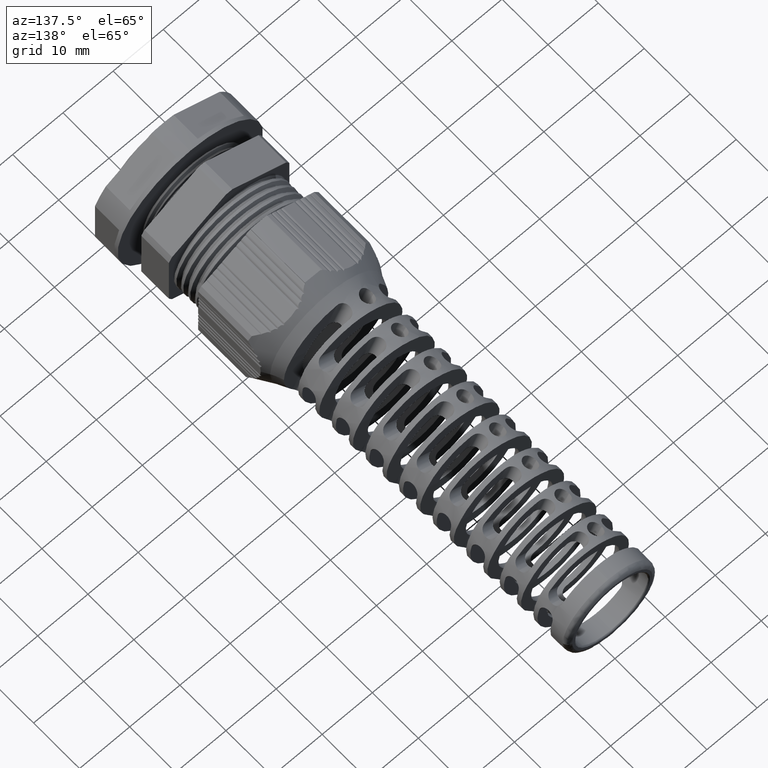
[diagram: clean part render]
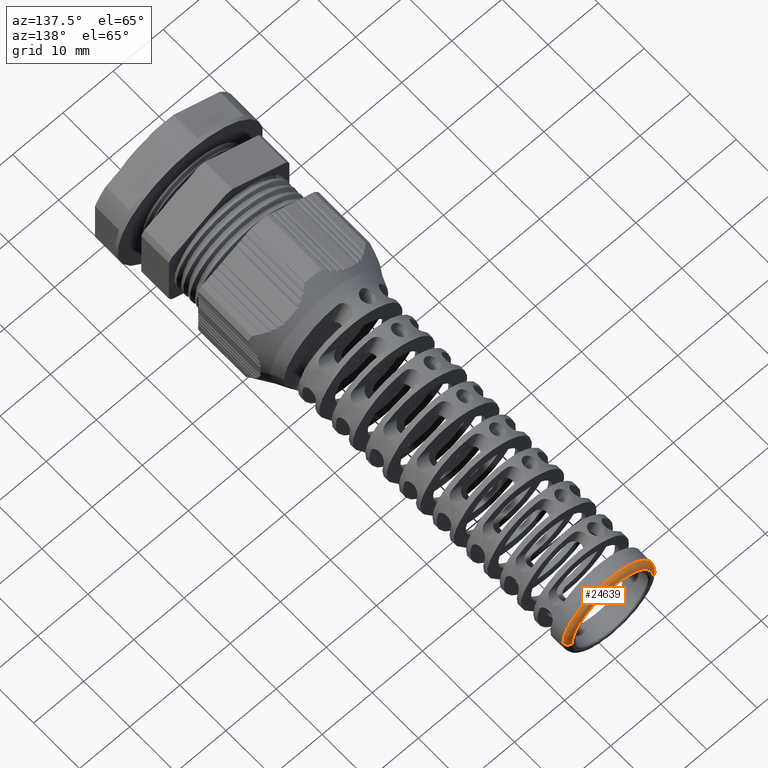
[diagram: same view with one face highlighted and labeled with its STEP entity id]
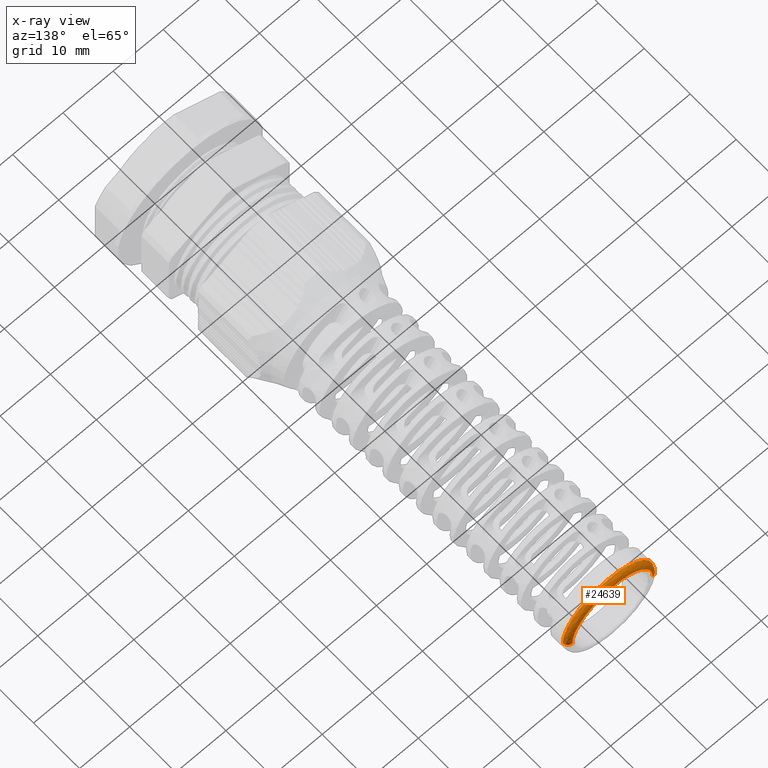
[diagram: x-ray of the same camera — body ghosted, the highlighted face saturated]
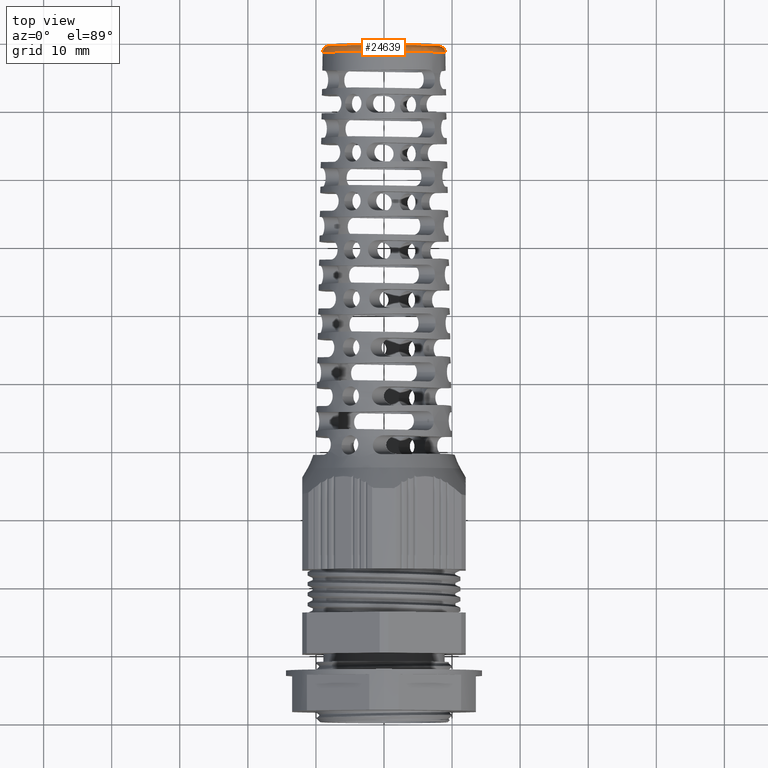
[diagram: same view with one face highlighted and labeled with its STEP entity id]
A machine part, auxiliary view. The second image highlights one B-rep face of the part: STEP entity #24639.
The next image is the same camera in x-ray: the body ghosted, the highlighted face saturated — about 0% of this face is hidden behind the body in this view.
A second angle (top view) of the same face is appended — the face is thin or edge-on in the first view.
In plain terms, the highlighted face is a freeform B-spline surface patch.
Its self-contained STEP definition (entity closure, byte-faithful):
#1936 = CARTESIAN_POINT ( 'NONE',  ( 40.99293203144834800, 99.09210635185243600, 18.01413593710435300 ) ) ;
#1937 = CARTESIAN_POINT ( 'NONE',  ( 59.00706796855253300, 99.09210635185232300, 18.01413593710435600 ) ) ;
#1939 = CARTESIAN_POINT ( 'NONE',  ( 59.00706796855254800, 99.09210635185235100, 1.689705947622164600E-013 ) ) ;
#1941 = CARTESIAN_POINT ( 'NONE',  ( 40.98284956795976100, 98.51448240544256400, 1.663677641299837000E-013 ) ) ;
#1942 = CARTESIAN_POINT ( 'NONE',  ( 41.40498532838035600, 99.49702999900540600, 1.689189189501351800E-013 ) ) ;
#1943 = CARTESIAN_POINT ( 'NONE',  ( 40.98284956795976800, 98.51448240544252100, 18.03430086408151600 ) ) ;
#1944 = CARTESIAN_POINT ( 'NONE',  ( 59.01715043204112000, 98.51448240544245000, 1.674720465713864300E-013 ) ) ;
#1946 = CARTESIAN_POINT ( 'NONE',  ( 59.01715043204112700, 98.51448240544239400, 18.03430086408152600 ) ) ;
#1953 = FACE_OUTER_BOUND ( 'NONE', #18518, .T. ) ;
#1958 = CARTESIAN_POINT ( 'NONE',  ( 41.98269726311613700, 99.49702999900542000, 1.689189189501351800E-013 ) ) ;
#1964 = CARTESIAN_POINT ( 'NONE',  ( 58.01730273688475800, 99.49702999900530600, 1.699007553635871900E-013 ) ) ;
#1965 = CARTESIAN_POINT ( 'NONE',  ( 41.40498532838035600, 99.49702999900537700, 17.19002934324034700 ) ) ;
#1966 = CARTESIAN_POINT ( 'NONE',  ( 58.59501467162054700, 99.49702999900530600, 1.699715046707575600E-013 ) ) ;
#1969 = CARTESIAN_POINT ( 'NONE',  ( 58.01730273688475800, 99.49702999900526400, 16.03460547376879600 ) ) ;
#1970 = CARTESIAN_POINT ( 'NONE',  ( 40.99293203144835500, 99.09210635185249300, 1.678675470664774600E-013 ) ) ;
#1980 = CARTESIAN_POINT ( 'NONE',  ( 41.98269726311613700, 99.49702999900539200, 16.03460547376878200 ) ) ;
#1981 = CARTESIAN_POINT ( 'NONE',  ( 58.59501467162054700, 99.49702999900523500, 17.19002934324036500 ) ) ;
#6646 =( BOUNDED_SURFACE ( )  B_SPLINE_SURFACE ( 3, 3, ( 
 ( #1958, #1980, #1969, #1964 ),
 ( #1942, #1965, #1981, #1966 ),
 ( #1970, #1936, #1937, #1939 ),
 ( #1941, #1943, #1946, #1944 ) ),
 .UNSPECIFIED., .F., .F., .T. ) 
 B_SPLINE_SURFACE_WITH_KNOTS ( ( 4, 4 ),
 ( 4, 4 ),
 ( 0.0000000000000000000, 1.000000000000000000 ),
 ( 0.0000000000000000000, 1.000000000000000000 ),
 .UNSPECIFIED. ) 
 GEOMETRIC_REPRESENTATION_ITEM ( )  RATIONAL_B_SPLINE_SURFACE ( (
 ( 1.000000000000000000, 0.3333333333333334300, 0.3333333333333334300, 1.000000000000000000),
 ( 0.8088336327694196600, 0.2696112109231399400, 0.2696112109231399400, 0.8088336327694196600),
 ( 0.8088336327694196600, 0.2696112109231399400, 0.2696112109231399400, 0.8088336327694196600),
 ( 1.000000000000000000, 0.3333333333333334300, 0.3333333333333334300, 1.000000000000000000) ) ) 
 REPRESENTATION_ITEM ( '' )  SURFACE ( )  );
#6662 =( BOUNDED_CURVE ( )  B_SPLINE_CURVE ( 3, ( #33942, #33950, #33929, #33941 ),
 .UNSPECIFIED., .F., .F. ) 
 B_SPLINE_CURVE_WITH_KNOTS ( ( 4, 4 ),
 ( 0.0000000000000000000, 1.000000000000000000 ),
 .UNSPECIFIED. ) 
 CURVE ( )  GEOMETRIC_REPRESENTATION_ITEM ( )  RATIONAL_B_SPLINE_CURVE ( ( 1.000000000000000000, 0.3333333333333333700, 0.3333333333333333700, 1.000000000000000000 ) ) 
 REPRESENTATION_ITEM ( '' )  );
#11362 = VERTEX_POINT ( 'NONE', #28181 ) ;
#11374 = VERTEX_POINT ( 'NONE', #28244 ) ;
#11382 = VERTEX_POINT ( 'NONE', #28262 ) ;
#11408 = VERTEX_POINT ( 'NONE', #28268 ) ;
#11442 = VERTEX_POINT ( 'NONE', #28260 ) ;
#12591 = DIRECTION ( 'NONE',  ( -1.598404901039211000E-029, -2.596469460477363700E-015, 1.000000000000000000 ) ) ;
#12599 = CARTESIAN_POINT ( 'NONE',  ( 41.98269726311613700, 98.49702999900543400, 1.663224494896578800E-013 ) ) ;
#12632 = DIRECTION ( 'NONE',  ( -1.000000000000000000, 0.0000000000000000000, 0.0000000000000000000 ) ) ;
#12657 = DIRECTION ( 'NONE',  ( 1.224646799147513200E-016, 2.596469460477362900E-015, -1.000000000000000000 ) ) ;
#12666 = DIRECTION ( 'NONE',  ( 1.000000000000000000, -1.387778780781463700E-014, 1.224646799146996700E-016 ) ) ;
#12680 = CARTESIAN_POINT ( 'NONE',  ( 58.01730273688474400, 98.49702999900532100, 1.673042859031098100E-013 ) ) ;
#12864 = CARTESIAN_POINT ( 'NONE',  ( 50.00000000000013500, 98.51448240544257800, 7.124349912886081000E-014 ) ) ;
#12866 = DIRECTION ( 'NONE',  ( -3.467807452640229700E-016, -1.000000000000000000, 1.040342235792068300E-015 ) ) ;
#12869 = DIRECTION ( 'NONE',  ( 0.0000000000000000000, 1.539043616096448000E-015, -1.000000000000000000 ) ) ;
#14378 = DIRECTION ( 'NONE',  ( -3.467807452640229700E-016, -1.000000000000000000, 1.040342235792068300E-015 ) ) ;
#14404 = CARTESIAN_POINT ( 'NONE',  ( 50.00000000000013500, 98.51448240544257800, 7.124349912886081000E-014 ) ) ;
#14408 = DIRECTION ( 'NONE',  ( 0.0000000000000000000, 1.539043616096448000E-015, -1.000000000000000000 ) ) ;
#16807 = ORIENTED_EDGE ( 'NONE', *, *, #24319, .T. ) ;
#16825 = ORIENTED_EDGE ( 'NONE', *, *, #25764, .F. ) ;
#16858 = ORIENTED_EDGE ( 'NONE', *, *, #27571, .F. ) ;
#16913 = ORIENTED_EDGE ( 'NONE', *, *, #25757, .T. ) ;
#16928 = ORIENTED_EDGE ( 'NONE', *, *, #25782, .F. ) ;
#18518 = EDGE_LOOP ( 'NONE', ( #16825, #16807, #16913, #16858, #16928 ) ) ;
#23690 = AXIS2_PLACEMENT_3D ( 'NONE', #12680, #12657, #12666 ) ;
#23692 = CIRCLE ( 'NONE', #23738, 9.017150432041278300 ) ;
#23695 = CIRCLE ( 'NONE', #23690, 0.9999999999999870100 ) ;
#23702 = AXIS2_PLACEMENT_3D ( 'NONE', #12599, #12591, #12632 ) ;
#23716 = CIRCLE ( 'NONE', #23702, 0.9999999999999870100 ) ;
#23738 = AXIS2_PLACEMENT_3D ( 'NONE', #12864, #12866, #12869 ) ;
#24094 = CIRCLE ( 'NONE', #24178, 9.017150432041278300 ) ;
#24178 = AXIS2_PLACEMENT_3D ( 'NONE', #14404, #14378, #14408 ) ;
#24319 = EDGE_CURVE ( 'NONE', #11382, #11362, #6662, .T. ) ;
#24639 = ADVANCED_FACE ( 'NONE', ( #1953 ), #6646, .T. ) ;
#25757 = EDGE_CURVE ( 'NONE', #11362, #11408, #23716, .T. ) ;
#25764 = EDGE_CURVE ( 'NONE', #11382, #11374, #23695, .T. ) ;
#25782 = EDGE_CURVE ( 'NONE', #11374, #11442, #23692, .T. ) ;
#27571 = EDGE_CURVE ( 'NONE', #11442, #11408, #24094, .T. ) ;
#28181 = CARTESIAN_POINT ( 'NONE',  ( 41.98269726311613700, 99.49702999900540600, 1.690055669331765900E-013 ) ) ;
#28244 = CARTESIAN_POINT ( 'NONE',  ( 59.01715043204126900, 98.51448240544257800, 1.674720465713868400E-013 ) ) ;
#28260 = CARTESIAN_POINT ( 'NONE',  ( 50.00000000000012800, 98.51448240544259200, 9.017150432041349400 ) ) ;
#28262 = CARTESIAN_POINT ( 'NONE',  ( 58.01730273688475100, 99.49702999900530600, 1.692477240860524200E-013 ) ) ;
#28268 = CARTESIAN_POINT ( 'NONE',  ( 40.98284956795930600, 98.51448240544257800, 1.663677641299837500E-013 ) ) ;
#33929 = CARTESIAN_POINT ( 'NONE',  ( 41.98269726311613700, 99.49702999900537700, 16.03460547376878200 ) ) ;
#33941 = CARTESIAN_POINT ( 'NONE',  ( 41.98269726311613700, 99.49702999900540600, 1.690055669331765900E-013 ) ) ;
#33942 = CARTESIAN_POINT ( 'NONE',  ( 58.01730273688475100, 99.49702999900530600, 1.692477240860524200E-013 ) ) ;
#33950 = CARTESIAN_POINT ( 'NONE',  ( 58.01730273688475800, 99.49702999900527800, 16.03460547376878200 ) ) ;